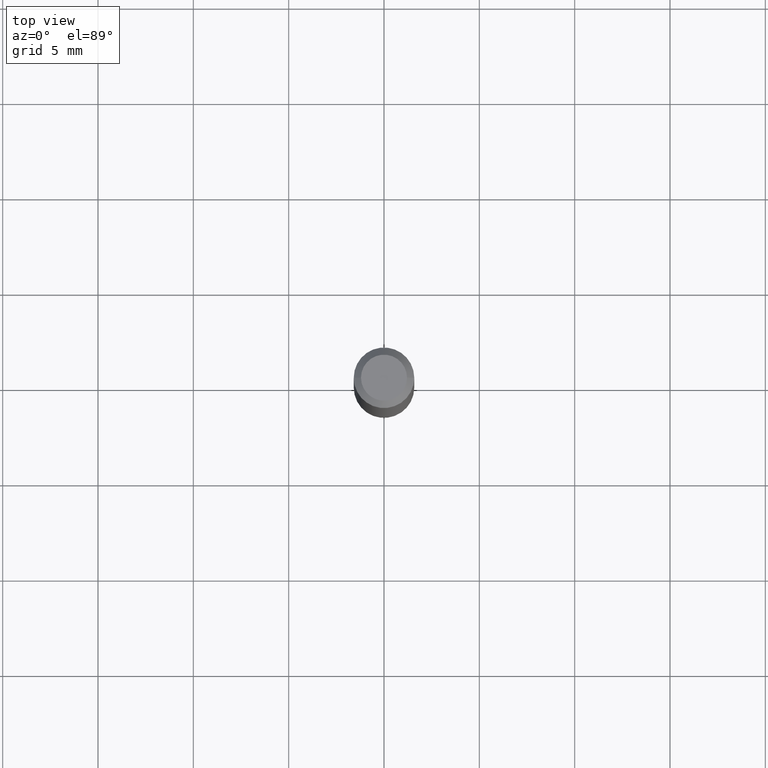
[diagram: clean part render]
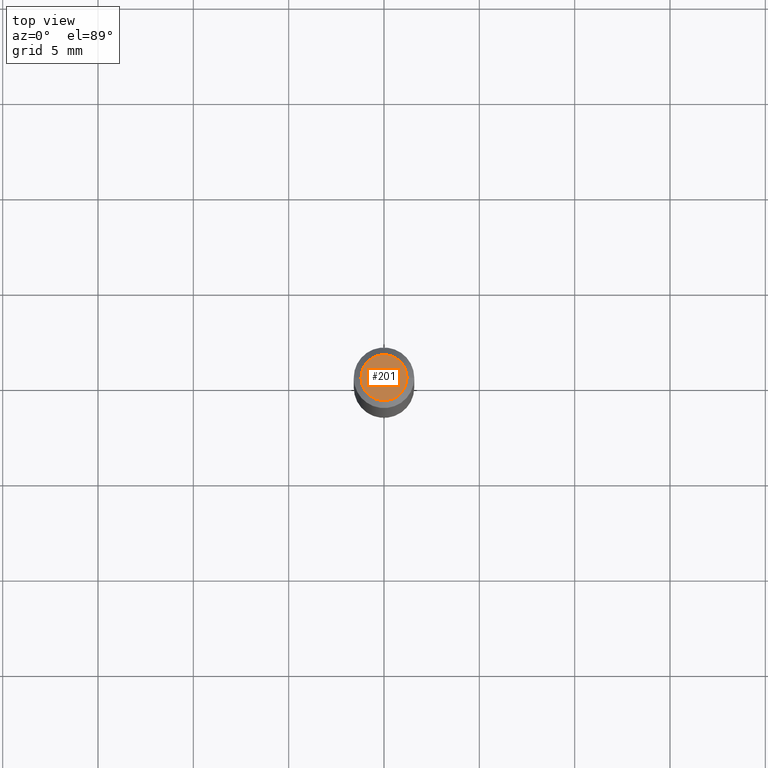
[diagram: same view with one face highlighted and labeled with its STEP entity id]
A machine part, top view. The second image highlights one B-rep face of the part: STEP entity #201.
In plain terms, the highlighted planar face has unit normal (0, -0, -1).
Its self-contained STEP definition (entity closure, byte-faithful):
#3 = CARTESIAN_POINT ( 'NONE',  ( 3.316907271900976096E-16, 0.04749999999999999362, -4.235459955654645622E-17 ) ) ;
#26 = DIRECTION ( 'NONE',  ( -2.445468806185136597E-29, 3.491481338843145583E-15, 1.000000000000000000 ) ) ;
#68 = PLANE ( 'NONE',  #146 ) ;
#83 = CIRCLE ( 'NONE', #212, 0.04749999999999999362 ) ;
#85 = EDGE_CURVE ( 'NONE', #403, #253, #330, .T. ) ;
#130 = DIRECTION ( 'NONE',  ( 1.000000000000000000, -6.982962677686267499E-15, 4.852736867747366768E-29 ) ) ;
#146 = AXIS2_PLACEMENT_3D ( 'NONE', #3, #148, #395 ) ;
#148 = DIRECTION ( 'NONE',  ( 2.438088387897960049E-29, -3.491481338843145188E-15, -1.000000000000000000 ) ) ;
#167 = CARTESIAN_POINT ( 'NONE',  ( -6.039856226162563845E-45, 8.623313963198305035E-31, 2.469815280770058928E-16 ) ) ;
#183 = FACE_OUTER_BOUND ( 'NONE', #446, .T. ) ;
#188 = ORIENTED_EDGE ( 'NONE', *, *, #85, .T. ) ;
#194 = EDGE_CURVE ( 'NONE', #253, #403, #83, .T. ) ;
#201 = ADVANCED_FACE ( 'NONE', ( #183 ), #68, .F. ) ;
#212 = AXIS2_PLACEMENT_3D ( 'NONE', #425, #261, #293 ) ;
#253 = VERTEX_POINT ( 'NONE', #397 ) ;
#261 = DIRECTION ( 'NONE',  ( -2.445468806185136597E-29, 3.491481338843145583E-15, 1.000000000000000000 ) ) ;
#293 = DIRECTION ( 'NONE',  ( 1.000000000000000000, -6.982962677686267499E-15, 4.852736867747366768E-29 ) ) ;
#330 = CIRCLE ( 'NONE', #391, 0.04749999999999999362 ) ;
#391 = AXIS2_PLACEMENT_3D ( 'NONE', #167, #26, #130 ) ;
#395 = DIRECTION ( 'NONE',  ( -1.000000000000000000, 6.982962677686265922E-15, -4.876176775795935793E-29 ) ) ;
#397 = CARTESIAN_POINT ( 'NONE',  ( 0.04749999999999999362, -4.035134999187574186E-16, 2.469815280770084566E-16 ) ) ;
#403 = VERTEX_POINT ( 'NONE', #422 ) ;
#422 = CARTESIAN_POINT ( 'NONE',  ( -0.04749999999999999362, 3.578768372314215436E-16, 2.469815280770034769E-16 ) ) ;
#425 = CARTESIAN_POINT ( 'NONE',  ( -6.039856226162563845E-45, 8.623313963198305035E-31, 2.469815280770058928E-16 ) ) ;
#446 = EDGE_LOOP ( 'NONE', ( #188, #457 ) ) ;
#457 = ORIENTED_EDGE ( 'NONE', *, *, #194, .T. ) ;